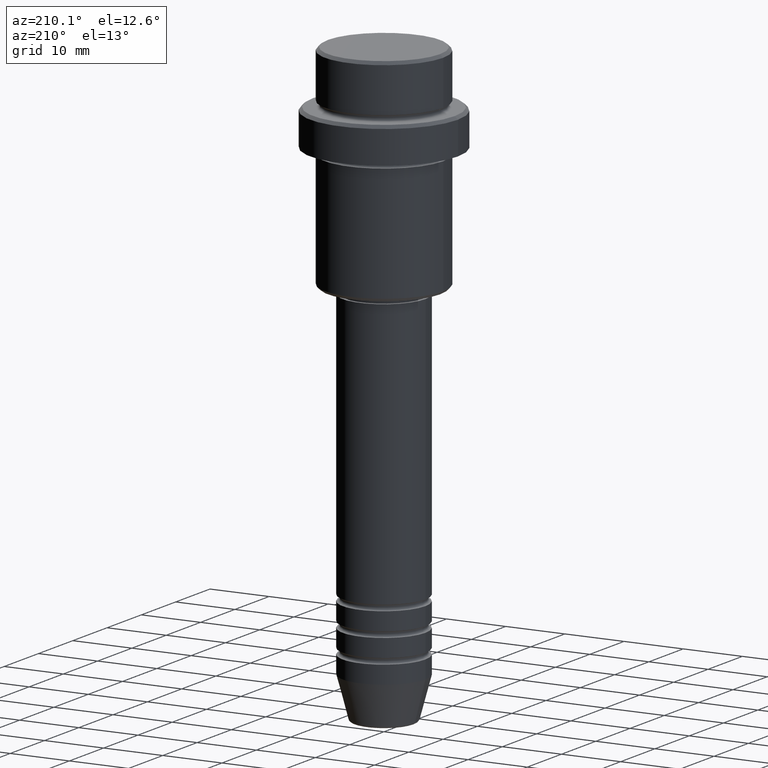
[diagram: clean part render]
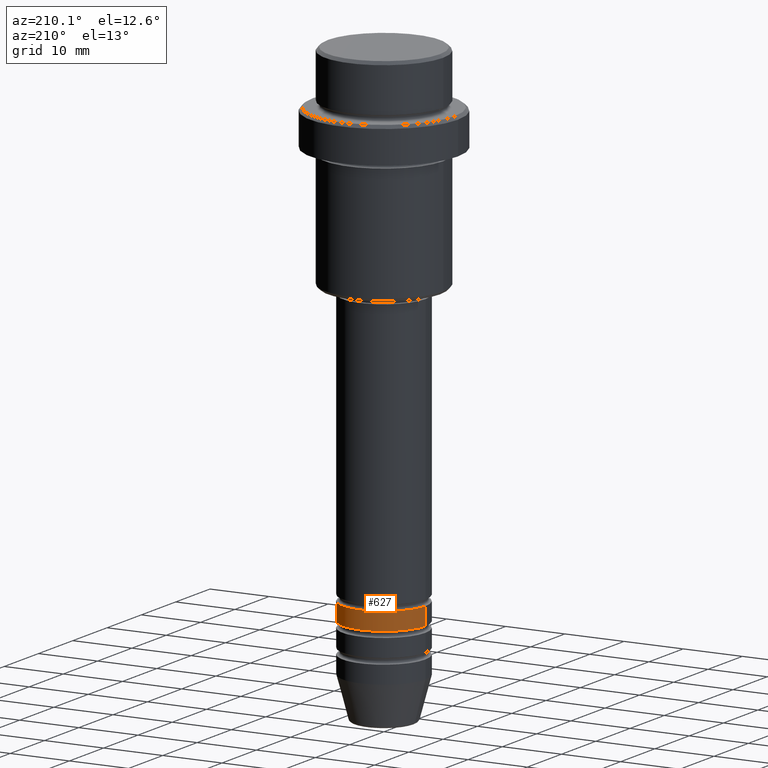
[diagram: same view with one face highlighted and labeled with its STEP entity id]
A machine part, auxiliary view. The second image highlights one B-rep face of the part: STEP entity #627.
In plain terms, the highlighted cylindrical surface (partial cylindrical patch) has radius 7 mm, axis along (-0, -0, 1).
Its self-contained STEP definition (entity closure, byte-faithful):
#6 = ORIENTED_EDGE ( 'NONE', *, *, #859, .T. ) ;
#35 = CARTESIAN_POINT ( 'NONE',  ( 0.000000000000000000, 0.000000000000000000, -82.99999999999988631 ) ) ;
#40 = DIRECTION ( 'NONE',  ( 1.000000000000000000, 0.000000000000000000, 0.000000000000000000 ) ) ;
#97 = CARTESIAN_POINT ( 'NONE',  ( -7.000000000000000000, 8.572527594031473190E-16, 0.000000000000000000 ) ) ;
#164 = CYLINDRICAL_SURFACE ( 'NONE', #811, 7.000000000000000000 ) ;
#170 = DIRECTION ( 'NONE',  ( 1.000000000000000000, 0.000000000000000000, 0.000000000000000000 ) ) ;
#179 = VECTOR ( 'NONE', #533, 1000.000000000000000 ) ;
#192 = ORIENTED_EDGE ( 'NONE', *, *, #300, .F. ) ;
#300 = EDGE_CURVE ( 'NONE', #957, #558, #1000, .T. ) ;
#326 = CARTESIAN_POINT ( 'NONE',  ( 7.000000000000000000, 0.000000000000000000, -82.99999999999988631 ) ) ;
#362 = CIRCLE ( 'NONE', #1089, 7.000000000000000000 ) ;
#373 = EDGE_LOOP ( 'NONE', ( #821, #6, #192, #1307 ) ) ;
#384 = FACE_OUTER_BOUND ( 'NONE', #373, .T. ) ;
#462 = VERTEX_POINT ( 'NONE', #924 ) ;
#512 = DIRECTION ( 'NONE',  ( -0.000000000000000000, -0.000000000000000000, 1.000000000000000000 ) ) ;
#520 = VECTOR ( 'NONE', #512, 1000.000000000000000 ) ;
#526 = CARTESIAN_POINT ( 'NONE',  ( 7.000000000000000000, 0.000000000000000000, 0.000000000000000000 ) ) ;
#533 = DIRECTION ( 'NONE',  ( -0.000000000000000000, -0.000000000000000000, 1.000000000000000000 ) ) ;
#558 = VERTEX_POINT ( 'NONE', #877 ) ;
#592 = DIRECTION ( 'NONE',  ( -0.000000000000000000, -0.000000000000000000, 1.000000000000000000 ) ) ;
#595 = DIRECTION ( 'NONE',  ( -0.000000000000000000, -0.000000000000000000, 1.000000000000000000 ) ) ;
#615 = VERTEX_POINT ( 'NONE', #890 ) ;
#627 = ADVANCED_FACE ( 'NONE', ( #384 ), #164, .T. ) ;
#652 = EDGE_CURVE ( 'NONE', #462, #615, #362, .T. ) ;
#682 = DIRECTION ( 'NONE',  ( -0.000000000000000000, -0.000000000000000000, 1.000000000000000000 ) ) ;
#723 = LINE ( 'NONE', #97, #179 ) ;
#755 = EDGE_CURVE ( 'NONE', #462, #957, #1160, .T. ) ;
#802 = DIRECTION ( 'NONE',  ( 1.000000000000000000, 0.000000000000000000, 0.000000000000000000 ) ) ;
#811 = AXIS2_PLACEMENT_3D ( 'NONE', #1357, #595, #170 ) ;
#821 = ORIENTED_EDGE ( 'NONE', *, *, #652, .T. ) ;
#859 = EDGE_CURVE ( 'NONE', #615, #558, #723, .T. ) ;
#877 = CARTESIAN_POINT ( 'NONE',  ( -7.000000000000000000, 8.572527594031473190E-16, -82.99999999999988631 ) ) ;
#890 = CARTESIAN_POINT ( 'NONE',  ( -7.000000000000000000, 8.572527594031473190E-16, -85.99999999999988631 ) ) ;
#924 = CARTESIAN_POINT ( 'NONE',  ( 7.000000000000000000, 0.000000000000000000, -85.99999999999988631 ) ) ;
#957 = VERTEX_POINT ( 'NONE', #326 ) ;
#1000 = CIRCLE ( 'NONE', #1249, 7.000000000000000000 ) ;
#1089 = AXIS2_PLACEMENT_3D ( 'NONE', #1352, #682, #40 ) ;
#1160 = LINE ( 'NONE', #526, #520 ) ;
#1249 = AXIS2_PLACEMENT_3D ( 'NONE', #35, #592, #802 ) ;
#1307 = ORIENTED_EDGE ( 'NONE', *, *, #755, .F. ) ;
#1352 = CARTESIAN_POINT ( 'NONE',  ( 0.000000000000000000, 0.000000000000000000, -85.99999999999988631 ) ) ;
#1357 = CARTESIAN_POINT ( 'NONE',  ( 0.000000000000000000, 0.000000000000000000, 0.000000000000000000 ) ) ;